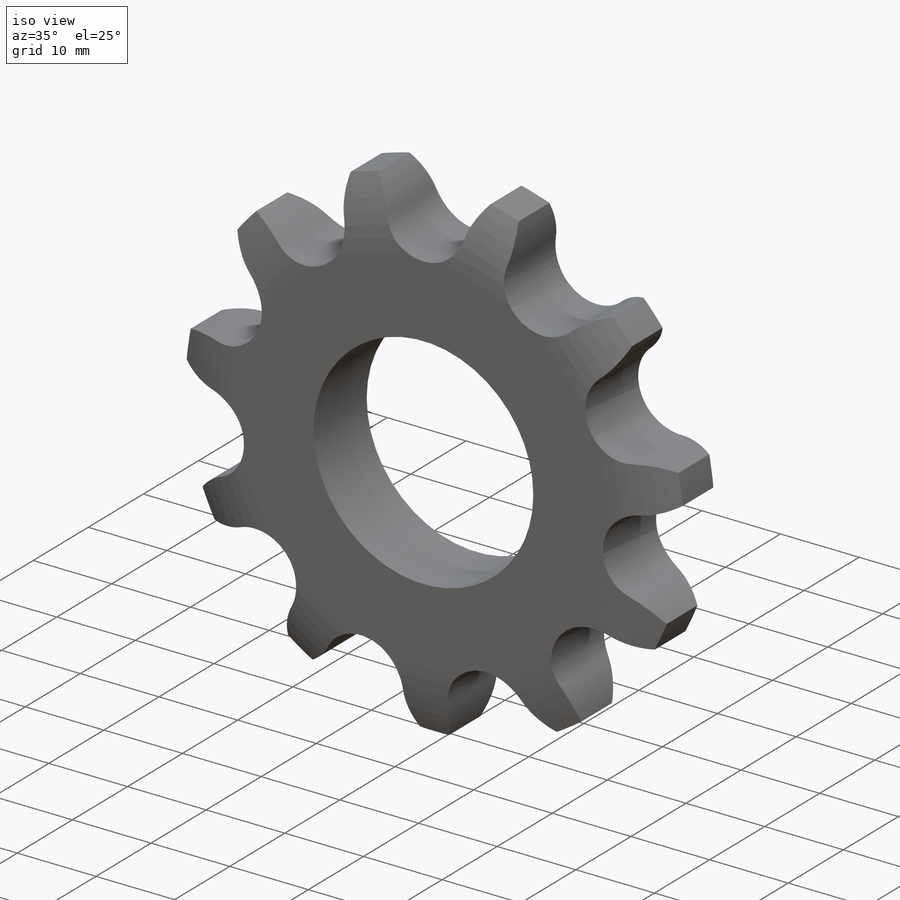
[diagram: iso view]
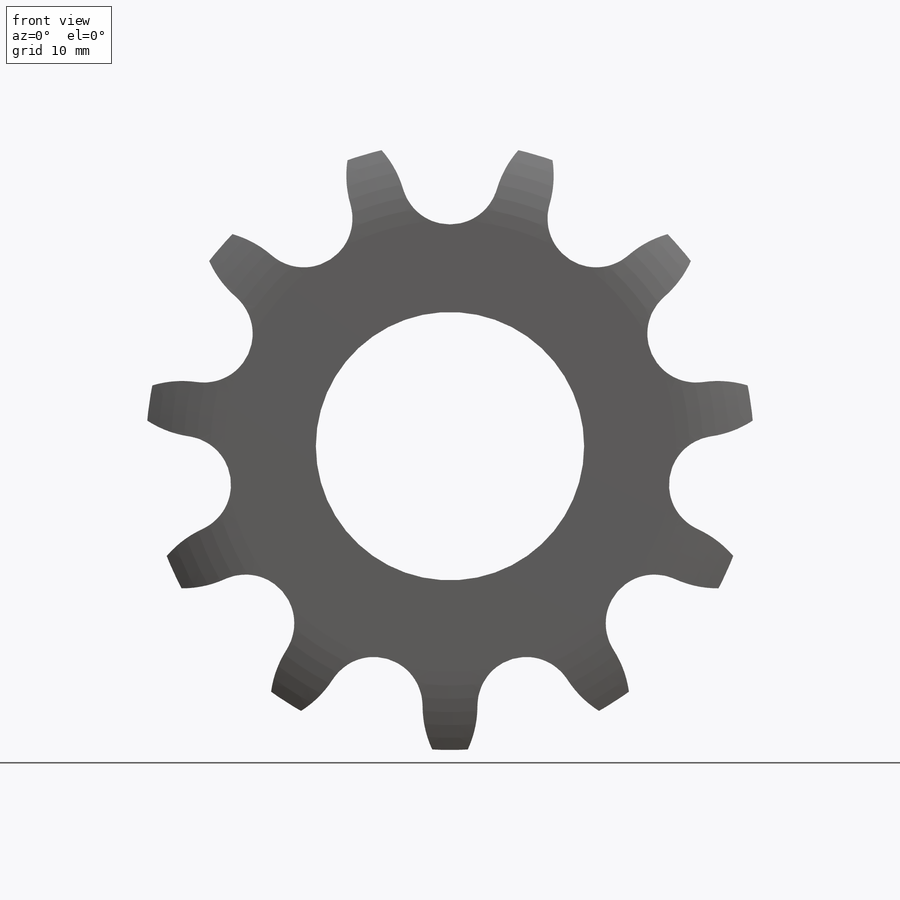
[diagram: front view]
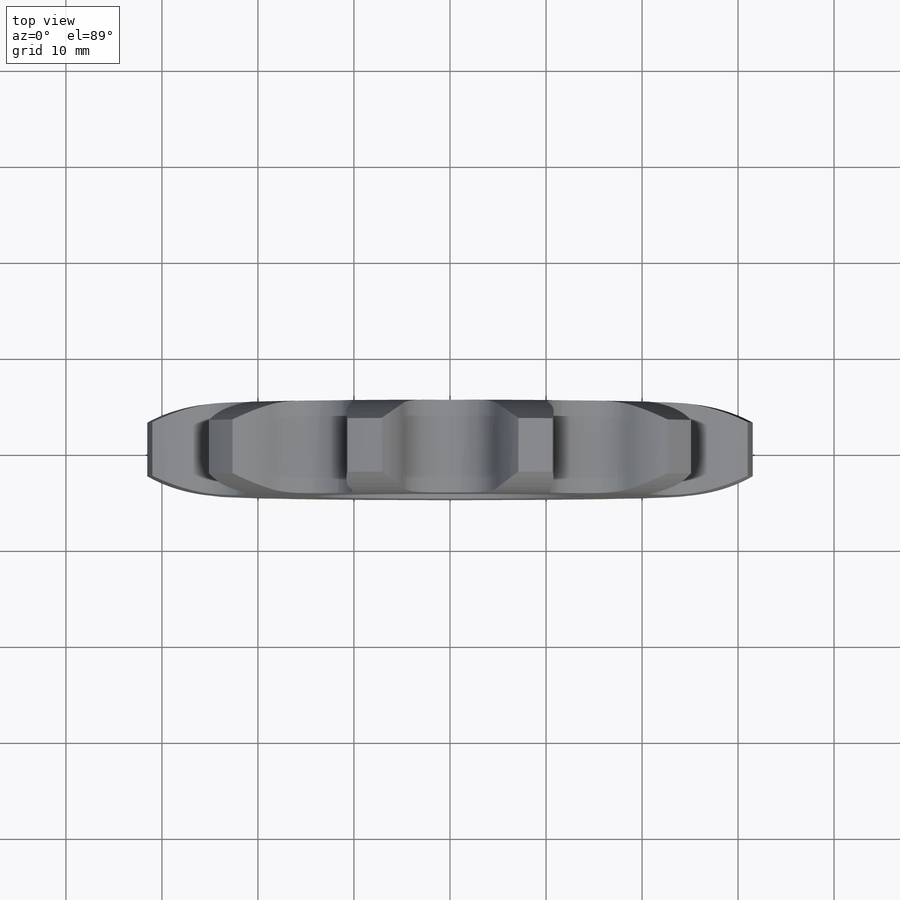
[diagram: top view]
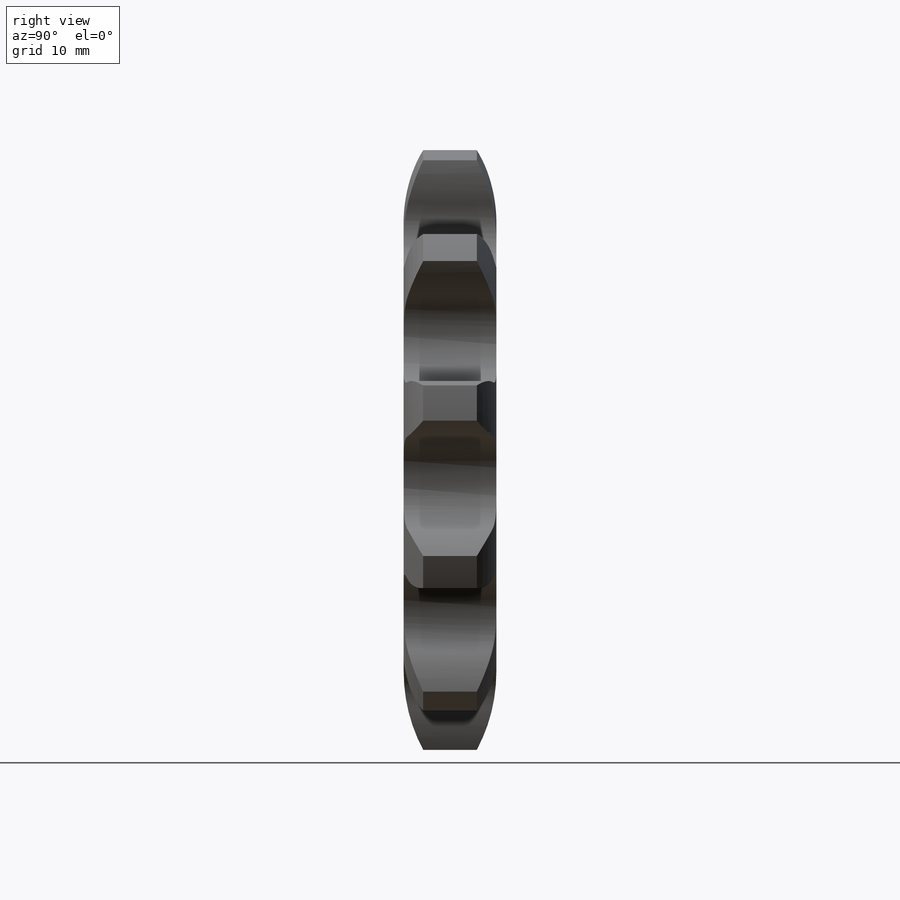
[diagram: right view]
SOLIDWORKS PART (.sldprt)
format: sldprt  version: not decoded by parser v0  size: 2,061,824 bytes
history: native  units: mm
features: sketch x8, cut_extrude x5, material x1, plane x1, extrude x1, cut_revolve x1, mirror x1, pattern_circular x1 + 1 further entry (+11 scaffold rows collapsed)
feature tree (31):
  scaffold x11  (default folders/planes/origin — collapsed)
  material  "Material <not specified>"
  plane  "Mid plane"
  "Design Table"
  sketch  "Sketch1"  dims[Dd=~257.814877mm Dp=~267.974877mm Da=~214.711819mm]
  extrude  "Boss-Extrude1"  Depth=9.652mm
  sketch  "Sketch2"  dims[h1=8.128mm r3=17.272mm]
  cut_revolve  "Cut-Revolve1"  Angle=360deg
  mirror  "Mirror1"
  sketch  "Sketch3"  dims[Dd=~197.222821mm Dp=267.97mm d1=21.59mm d2=10.16mm r2=5.08mm r1=10.795mm D1=~137.720871mm D3=15.875mm Dp1/2=~103.691411mm Dp/2=~103.691411mm]
  cut_extrude  "Cut-Extrude4"  Depth=12.7mm
  pattern_circular  "CirPattern1"  Count=41 Angle=360deg
  sketch  "Sketch4"  dims[D1=91.44mm]
  cut_extrude  "Cut-Extrude5"  [1 undecoded]
  sketch  "Sketch5"  dims[D1=114.3mm D2=9.525mm D3=6.0]
  cut_extrude  "Cut-Extrude6"  [1 undecoded]
  sketch  "Sketch6"  dims[D1=146.05mm D2=31.75mm D3=6.0]
  cut_extrude  "Cut-Extrude7"  [1 undecoded]
  sketch  "Chain OD"  dims[D1=~222.089421mm]
  sketch  "Sketch7"  dims[D1=27.94mm]
  cut_extrude  "Cut-Extrude8"  [1 undecoded]
decode coverage: 12 of 17 modeling features carry decoded parameters; 1 rows unclassified (native names shown)
note: ~ marks probable driven/reference dimensions
note: 4 parameter values undecoded
summary: no parameter record found for 4 features
note: suppression state not decoded; provenance and decode notes live in map.json
